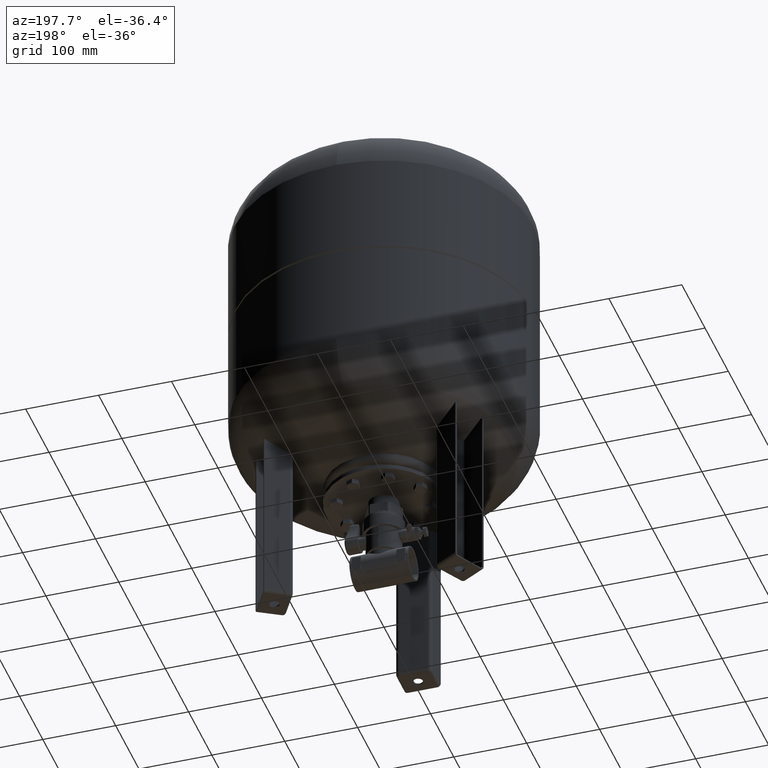
[diagram: clean part render]
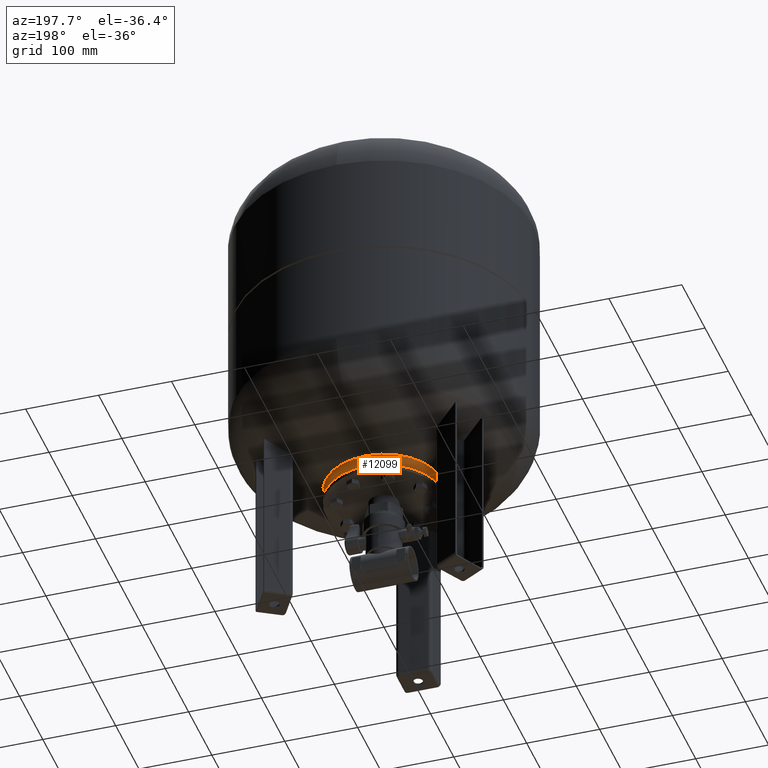
[diagram: same view with one face highlighted and labeled with its STEP entity id]
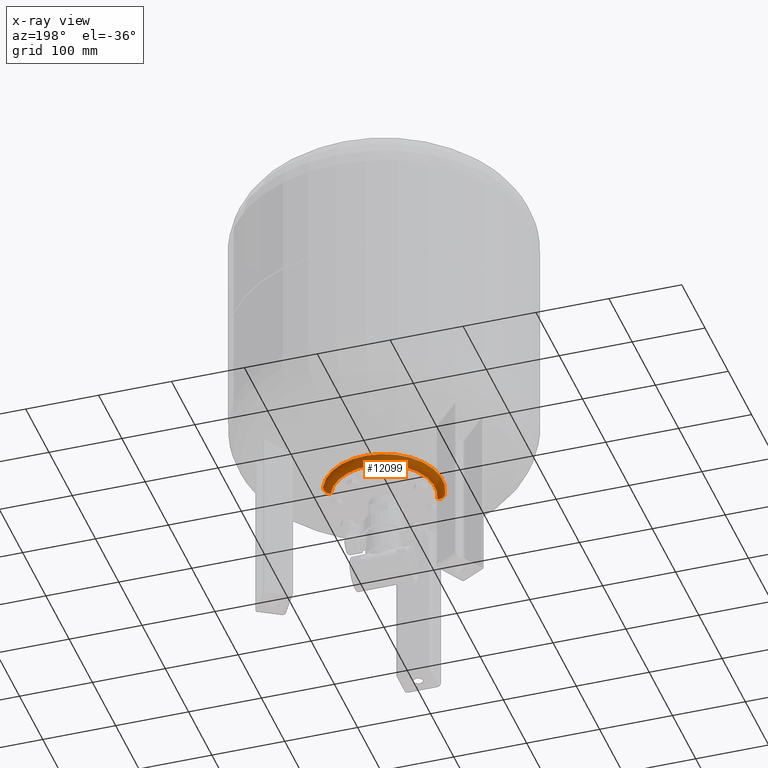
[diagram: x-ray of the same camera — body ghosted, the highlighted face saturated]
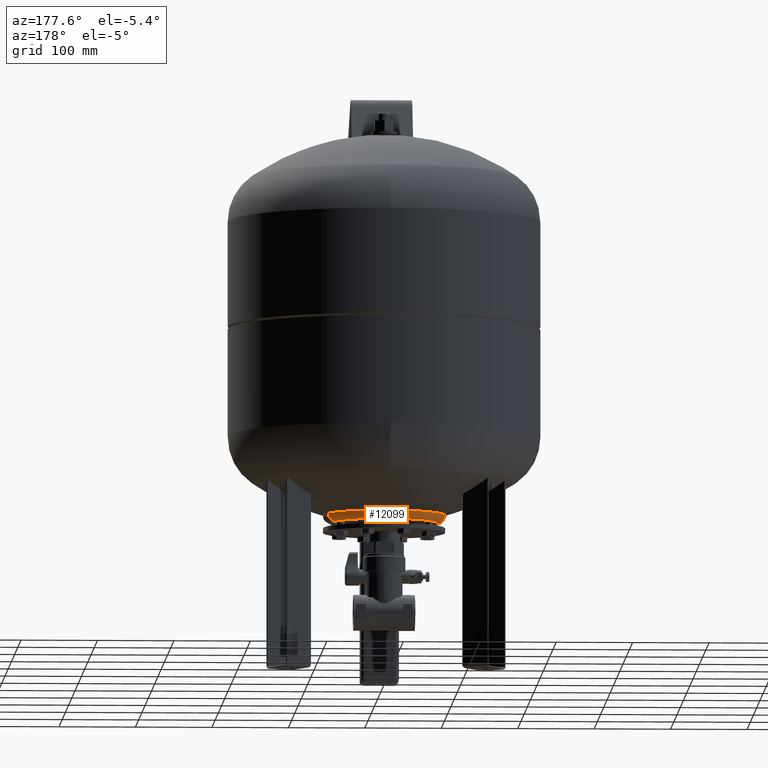
[diagram: same view with one face highlighted and labeled with its STEP entity id]
A machine part, auxiliary view. The second image highlights one B-rep face of the part: STEP entity #12099.
The next image is the same camera in x-ray: the body ghosted, the highlighted face saturated — about 9% of this face is hidden behind the body in this view.
A second angle (auxiliary view) of the same face is appended — the face is thin or edge-on in the first view.
In plain terms, the highlighted toroidal blend (fillet) surface has major radius 70 mm and minor (blend) radius 10 mm.
Its self-contained STEP definition (entity closure, byte-faithful):
#12031=CARTESIAN_POINT('',(64.671567275790068,26.787840265556277,197.750000000000000));
#12032=VERTEX_POINT('',#12031);
#12048=CARTESIAN_POINT('',(-64.671567275790068,-26.787840265556287,197.750000000000000));
#12049=VERTEX_POINT('',#12048);
#12056=CARTESIAN_POINT('',(2.090283E-015,-6.126443E-015,197.750000000000000));
#12057=DIRECTION('',(5.350112E-017,2.216089E-017,-1.000000000000000));
#12058=DIRECTION('',(0.923879532511287,0.382683432365090,5.790920E-017));
#12059=AXIS2_PLACEMENT_3D('',#12056,#12057,#12058);
#12060=CIRCLE('',#12059,69.999999999999986);
#12061=EDGE_CURVE('',#12049,#12032,#12060,.T.);
#12066=CARTESIAN_POINT('',(2.940792E-015,-7.099699E-015,207.750000000000000));
#12067=DIRECTION('',(9.706102E-018,1.365752E-016,-1.0));
#12068=DIRECTION('',(0.923879532511287,0.382683432365090,6.123234E-017));
#12069=AXIS2_PLACEMENT_3D('',#12066,#12067,#12068);
#12070=TOROIDAL_SURFACE('',#12069,70.0,10.0);
#12071=CARTESIAN_POINT('',(73.910362600902943,30.614674589207176,207.750000000000000));
#12072=VERTEX_POINT('',#12071);
#12073=CARTESIAN_POINT('',(64.671567275790068,26.787840265556277,207.750000000000000));
#12074=DIRECTION('',(0.382683432365090,-0.923879532511287,-1.224647E-016));
#12075=DIRECTION('',(0.923879532511287,0.382683432365090,0.0));
#12076=AXIS2_PLACEMENT_3D('',#12073,#12074,#12075);
#12077=CIRCLE('',#12076,10.0);
#12078=EDGE_CURVE('',#12032,#12072,#12077,.T.);
#12079=ORIENTED_EDGE('',*,*,#12078,.F.);
#12080=ORIENTED_EDGE('',*,*,#12061,.F.);
#12081=CARTESIAN_POINT('',(-73.910362600902943,-30.614674589207180,207.750000000000000));
#12082=VERTEX_POINT('',#12081);
#12083=CARTESIAN_POINT('',(-64.671567275790068,-26.787840265556284,207.750000000000000));
#12084=DIRECTION('',(-0.382683432365090,0.923879532511287,1.224647E-016));
#12085=DIRECTION('',(-0.923879532511287,-0.382683432365090,0.0));
#12086=AXIS2_PLACEMENT_3D('',#12083,#12084,#12085);
#12087=CIRCLE('',#12086,10.0);
#12088=EDGE_CURVE('',#12049,#12082,#12087,.T.);
#12089=ORIENTED_EDGE('',*,*,#12088,.T.);
#12090=CARTESIAN_POINT('',(1.993222E-015,-7.492195E-015,207.750000000000000));
#12091=DIRECTION('',(5.350112E-017,2.216089E-017,-1.0));
#12092=DIRECTION('',(0.923879532511287,0.382683432365090,5.790920E-017));
#12093=AXIS2_PLACEMENT_3D('',#12090,#12091,#12092);
#12094=CIRCLE('',#12093,80.0);
#12095=EDGE_CURVE('',#12082,#12072,#12094,.T.);
#12096=ORIENTED_EDGE('',*,*,#12095,.T.);
#12097=EDGE_LOOP('',(#12079,#12080,#12089,#12096));
#12098=FACE_OUTER_BOUND('',#12097,.T.);
#12099=ADVANCED_FACE('',(#12098),#12070,.T.);